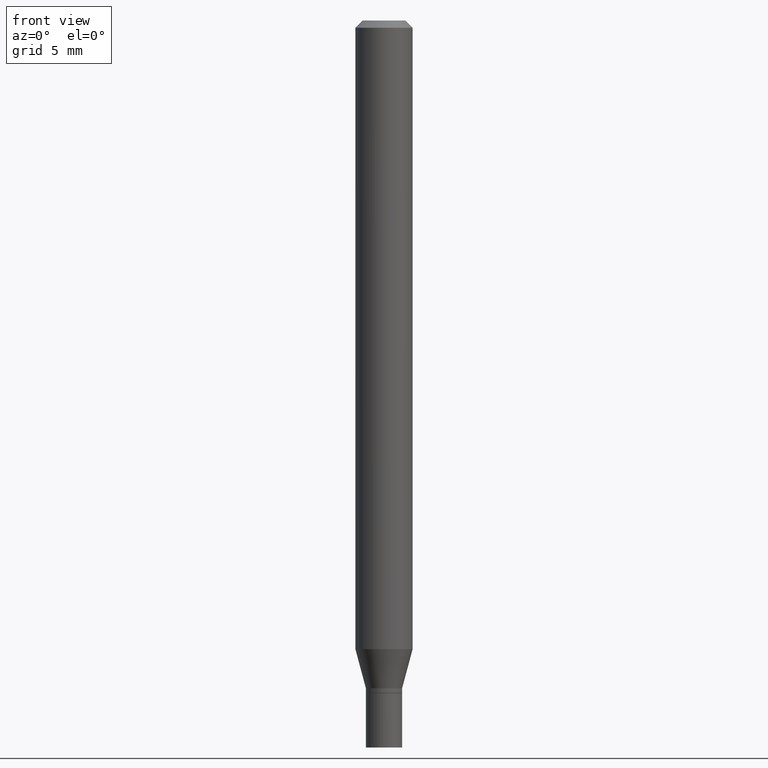
[diagram: clean part render]
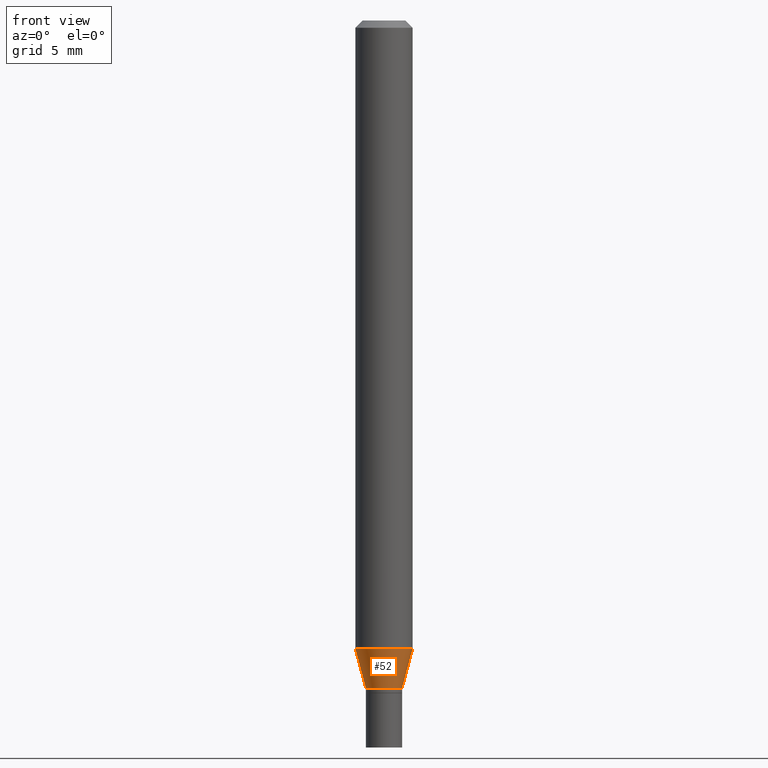
[diagram: same view with one face highlighted and labeled with its STEP entity id]
A machine part, front view. The second image highlights one B-rep face of the part: STEP entity #52.
In plain terms, the highlighted conical surface has half-angle 15 deg.
Its self-contained STEP definition (entity closure, byte-faithful):
#9 = LINE ( 'NONE', #150, #345 ) ;
#10 = ORIENTED_EDGE ( 'NONE', *, *, #367, .T. ) ;
#29 = DIRECTION ( 'NONE',  ( 1.000000000000000000, -6.982962677686273021E-15, 0.000000000000000000 ) ) ;
#34 = CARTESIAN_POINT ( 'NONE',  ( 3.369366921161882060E-29, -4.810562988658086927E-15, -1.377800000000000358 ) ) ;
#43 = AXIS2_PLACEMENT_3D ( 'NONE', #211, #351, #29 ) ;
#52 = ADVANCED_FACE ( 'NONE', ( #100 ), #290, .T. ) ;
#68 = DIRECTION ( 'NONE',  ( 1.000000000000000000, -6.982962677686265922E-15, 0.000000000000000000 ) ) ;
#74 = AXIS2_PLACEMENT_3D ( 'NONE', #279, #391, #68 ) ;
#81 = VERTEX_POINT ( 'NONE', #107 ) ;
#97 = LINE ( 'NONE', #429, #126 ) ;
#100 = FACE_OUTER_BOUND ( 'NONE', #413, .T. ) ;
#101 = EDGE_CURVE ( 'NONE', #125, #81, #97, .T. ) ;
#107 = CARTESIAN_POINT ( 'NONE',  ( -0.05904999999999999832, -4.108879651699028783E-15, -1.297001100016135000 ) ) ;
#118 = EDGE_CURVE ( 'NONE', #81, #401, #245, .T. ) ;
#125 = VERTEX_POINT ( 'NONE', #360 ) ;
#126 = VECTOR ( 'NONE', #241, 39.37007874015748143 ) ;
#140 = DIRECTION ( 'NONE',  ( 1.000000000000000000, -6.982962677686265922E-15, 0.000000000000000000 ) ) ;
#150 = CARTESIAN_POINT ( 'NONE',  ( 0.03740000000000019004, -5.071725792803554116E-15, -1.377800000000000358 ) ) ;
#189 = CARTESIAN_POINT ( 'NONE',  ( 0.05904999999999999832, -4.940799083282741618E-15, -1.297001100016135000 ) ) ;
#211 = CARTESIAN_POINT ( 'NONE',  ( 3.171775731677266837E-29, -4.528455137165367487E-15, -1.297001100016135000 ) ) ;
#221 = CARTESIAN_POINT ( 'NONE',  ( 0.03740000000000019004, -5.071725792803554116E-15, -1.377800000000000358 ) ) ;
#241 = DIRECTION ( 'NONE',  ( -0.2588190451025214611, 5.211531920934550253E-15, 0.9659258262890679791 ) ) ;
#245 = CIRCLE ( 'NONE', #43, 0.05904999999999999832 ) ;
#255 = EDGE_CURVE ( 'NONE', #125, #362, #337, .T. ) ;
#279 = CARTESIAN_POINT ( 'NONE',  ( 3.369366921161882060E-29, -4.810562988658086927E-15, -1.377800000000000358 ) ) ;
#290 = CONICAL_SURFACE ( 'NONE', #415, 0.03740000000000019004, 0.2617993877991501850 ) ;
#337 = CIRCLE ( 'NONE', #74, 0.03740000000000019004 ) ;
#340 = DIRECTION ( 'NONE',  ( 0.2588190451025214611, 1.565188264969620982E-15, 0.9659258262890679791 ) ) ;
#341 = ORIENTED_EDGE ( 'NONE', *, *, #255, .T. ) ;
#345 = VECTOR ( 'NONE', #340, 39.37007874015748143 ) ;
#351 = DIRECTION ( 'NONE',  ( -2.445468806185136597E-29, 3.491481338843145583E-15, 1.000000000000000000 ) ) ;
#360 = CARTESIAN_POINT ( 'NONE',  ( -0.03740000000000019004, -4.326849828591418371E-15, -1.377800000000000358 ) ) ;
#362 = VERTEX_POINT ( 'NONE', #221 ) ;
#367 = EDGE_CURVE ( 'NONE', #362, #401, #9, .T. ) ;
#374 = ORIENTED_EDGE ( 'NONE', *, *, #118, .F. ) ;
#391 = DIRECTION ( 'NONE',  ( -2.445468806185136597E-29, 3.491481338843145583E-15, 1.000000000000000000 ) ) ;
#401 = VERTEX_POINT ( 'NONE', #189 ) ;
#413 = EDGE_LOOP ( 'NONE', ( #437, #341, #10, #374 ) ) ;
#415 = AXIS2_PLACEMENT_3D ( 'NONE', #34, #466, #140 ) ;
#429 = CARTESIAN_POINT ( 'NONE',  ( -0.03740000000000019004, -4.544820005483808748E-15, -1.377800000000000358 ) ) ;
#437 = ORIENTED_EDGE ( 'NONE', *, *, #101, .F. ) ;
#466 = DIRECTION ( 'NONE',  ( -2.445468806185136597E-29, 3.491481338843145583E-15, 1.000000000000000000 ) ) ;